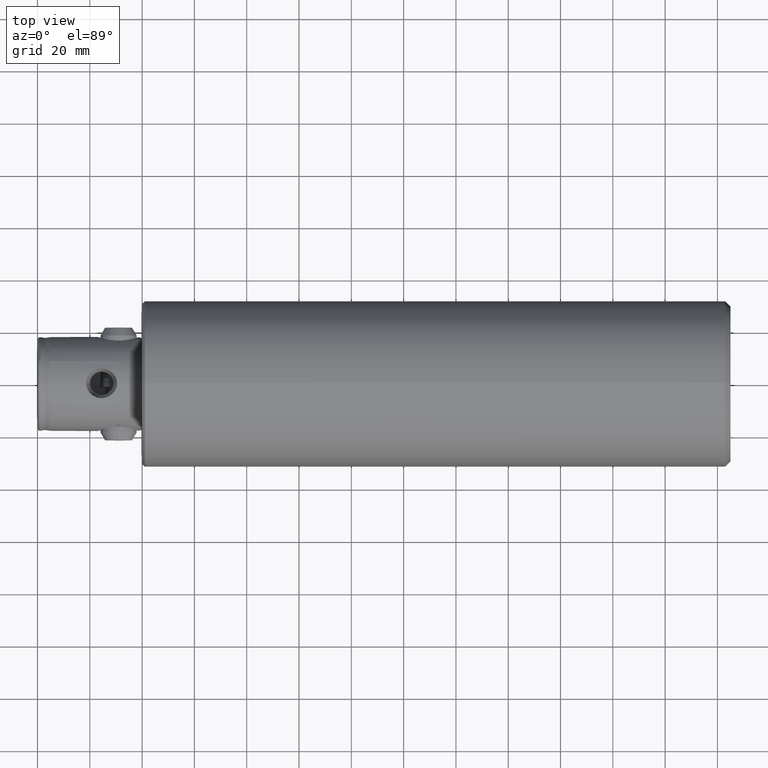
[diagram: clean part render]
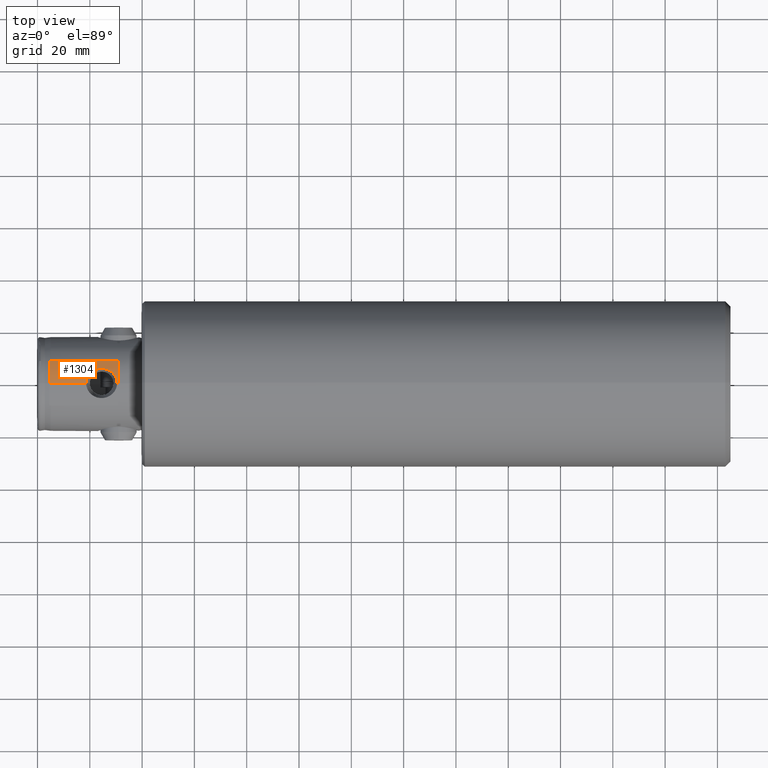
[diagram: same view with one face highlighted and labeled with its STEP entity id]
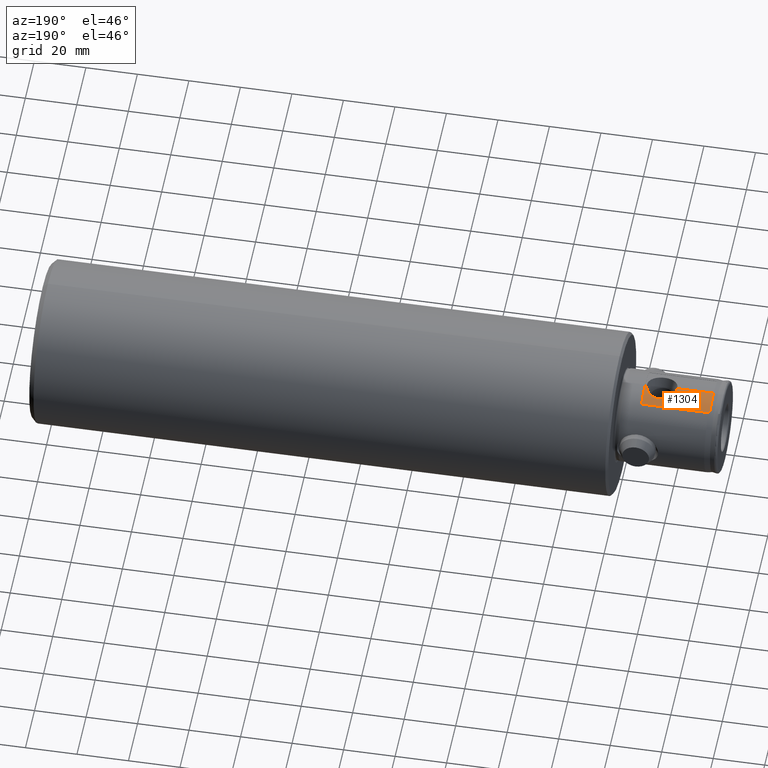
[diagram: same view with one face highlighted and labeled with its STEP entity id]
A machine part, top view. The second image highlights one B-rep face of the part: STEP entity #1304.
A second angle (auxiliary view) of the same face is appended — the face is thin or edge-on in the first view.
In plain terms, the highlighted cylindrical surface (partial cylindrical patch) has radius 18 mm, axis along (-1, 0, 0).
Its self-contained STEP definition (entity closure, byte-faithful):
#19 = B_SPLINE_CURVE_WITH_KNOTS ( 'NONE', 3,
 ( #918, #916, #913, #919, #920, #921, #922, #923, #924, #925 ),
 .UNSPECIFIED., .F., .F.,
 ( 4, 2, 2, 2, 4 ),
 ( 2.236915273377554400E-007, 0.004405091776158564400, 0.005506308797316371500, 0.006607525818474176800, 0.008809959860789792800 ),
 .UNSPECIFIED. ) ;
#22 = B_SPLINE_CURVE_WITH_KNOTS ( 'NONE', 3,
 ( #994, #989, #990, #995, #996, #997, #998, #999, #1000, #1001, #1002, #1003, #1004, #1005, #1006, #1007, #1008, #1009, #1010, #1011, #1012, #1013, #1014, #1015, #1016, #1017, #1018, #1019, #1020, #1021, #1022, #1023, #1024, #1025, #1026, #1027, #1028, #1029, #1030, #1031, #1032, #1033 ),
 .UNSPECIFIED., .F., .F.,
 ( 4, 2, 2, 2, 2, 2, 2, 2, 2, 2, 2, 2, 2, 2, 2, 2, 2, 2, 2, 2, 4 ),
 ( 0.01360910775429641900, 0.01474328752887493900, 0.01587746730345346000, 0.01701164707803198100, 0.01814582685261050000, 0.01928000662718901800, 0.01984709651447828100, 0.02041418640176753700, 0.02154836617634605500, 0.02268254595092457400, 0.02324963583821382900, 0.02381672572550308200, 0.02495090550008157900, 0.02608508527466007700, 0.02721926504923857400, 0.02778635493652782300, 0.02835344482381707200, 0.02948762459839557300, 0.03062180437297407400, 0.03118889426026332300, 0.03175598414755257500 ),
 .UNSPECIFIED. ) ;
#293 = DIRECTION ( 'NONE',  ( -1.000000000000000000, 0.0000000000000000000, 0.0000000000000000000 ) ) ;
#294 = DIRECTION ( 'NONE',  ( 0.0000000000000000000, 0.0000000000000000000, 1.000000000000000000 ) ) ;
#297 = CARTESIAN_POINT ( 'NONE',  ( 31.00000000000000000, 0.0000000000000000000, -0.06999999999999996500 ) ) ;
#913 = CARTESIAN_POINT ( 'NONE',  ( 4.526975339076886800, 5.815750174379757300, 17.02811837977963100 ) ) ;
#916 = CARTESIAN_POINT ( 'NONE',  ( 4.541645771106434600, 7.187216486560393100, 16.49991008679421300 ) ) ;
#918 = CARTESIAN_POINT ( 'NONE',  ( 4.561173011721211700, 8.500000000000001800, 15.79663165262242700 ) ) ;
#919 = CARTESIAN_POINT ( 'NONE',  ( 4.514512600342740700, 4.030500815527453500, 17.47681169941615000 ) ) ;
#920 = CARTESIAN_POINT ( 'NONE',  ( 4.512318024354617500, 3.669854151725033400, 17.55581995454566900 ) ) ;
#921 = CARTESIAN_POINT ( 'NONE',  ( 4.508536962439103000, 2.941221782085254400, 17.69194170110860800 ) ) ;
#922 = CARTESIAN_POINT ( 'NONE',  ( 4.506949049834921600, 2.572302290702973800, 17.74910654927889600 ) ) ;
#923 = CARTESIAN_POINT ( 'NONE',  ( 4.503167209855087400, 1.469061508139440900, 17.88525124977483900 ) ) ;
#924 = CARTESIAN_POINT ( 'NONE',  ( 4.501924119433152100, 0.7342156615914451300, 17.93000000000000000 ) ) ;
#925 = CARTESIAN_POINT ( 'NONE',  ( 4.501924119433152100, 1.318032018692837200E-015, 17.93000000000000000 ) ) ;
#989 = CARTESIAN_POINT ( 'NONE',  ( 30.42445529774621000, 0.3809652001136524800, 17.93000000000000700 ) ) ;
#990 = CARTESIAN_POINT ( 'NONE',  ( 30.38336581847062200, 0.7681734596086007300, 17.91746456608988000 ) ) ;
#994 = CARTESIAN_POINT ( 'NONE',  ( 30.42445529774620600, -1.071667539742744500E-023, 17.93000000000000000 ) ) ;
#995 = CARTESIAN_POINT ( 'NONE',  ( 30.22428742545745500, 1.512255011053177400, 17.87023569415771400 ) ) ;
#996 = CARTESIAN_POINT ( 'NONE',  ( 30.10692999351813300, 1.873383340865529200, 17.83572605408934200 ) ) ;
#997 = CARTESIAN_POINT ( 'NONE',  ( 29.79594064907516700, 2.573923875962815400, 17.74851583456586800 ) ) ;
#998 = CARTESIAN_POINT ( 'NONE',  ( 29.60733662265327800, 2.901956093779709100, 17.69727156016931600 ) ) ;
#999 = CARTESIAN_POINT ( 'NONE',  ( 29.16872895660654300, 3.515783486802860100, 17.58606282093919400 ) ) ;
#1000 = CARTESIAN_POINT ( 'NONE',  ( 28.91559999438211300, 3.804064267599762200, 17.52542859830050800 ) ) ;
#1001 = CARTESIAN_POINT ( 'NONE',  ( 28.36499703567021100, 4.319612037852444100, 17.40601111101617300 ) ) ;
#1002 = CARTESIAN_POINT ( 'NONE',  ( 28.06691972846662300, 4.548958210731684400, 17.34696330688903000 ) ) ;
#1003 = CARTESIAN_POINT ( 'NONE',  ( 27.58534548090496900, 4.851172622815272300, 17.26427333616189200 ) ) ;
#1004 = CARTESIAN_POINT ( 'NONE',  ( 27.41830335428071000, 4.945178645238853800, 17.23760156847704300 ) ) ;
#1005 = CARTESIAN_POINT ( 'NONE',  ( 27.07895362516774900, 5.115469253199727900, 17.18803691634838800 ) ) ;
#1006 = CARTESIAN_POINT ( 'NONE',  ( 26.90605426236586000, 5.192209219451712000, 17.16502539275114700 ) ) ;
#1007 = CARTESIAN_POINT ( 'NONE',  ( 26.37781099911529000, 5.397836957271664500, 17.10218400938147500 ) ) ;
#1008 = CARTESIAN_POINT ( 'NONE',  ( 26.01301121549560900, 5.502376496687897900, 17.06853502492067800 ) ) ;
#1009 = CARTESIAN_POINT ( 'NONE',  ( 25.25668822700170300, 5.643795072353519500, 17.02248686098703300 ) ) ;
#1010 = CARTESIAN_POINT ( 'NONE',  ( 24.87689642852934900, 5.678383750228683800, 17.01086525989592200 ) ) ;
#1011 = CARTESIAN_POINT ( 'NONE',  ( 24.30682891010763700, 5.678093498899985800, 17.01096174775135200 ) ) ;
#1012 = CARTESIAN_POINT ( 'NONE',  ( 24.11663054508899500, 5.669258924182950700, 17.01390624646067100 ) ) ;
#1013 = CARTESIAN_POINT ( 'NONE',  ( 23.73587562974411500, 5.633765542119971500, 17.02564374932128300 ) ) ;
#1014 = CARTESIAN_POINT ( 'NONE',  ( 23.54437903640693700, 5.606872356921136300, 17.03451315339182800 ) ) ;
#1015 = CARTESIAN_POINT ( 'NONE',  ( 22.98052156601741900, 5.500599572436073900, 17.06910603588053400 ) ) ;
#1016 = CARTESIAN_POINT ( 'NONE',  ( 22.61631401092382300, 5.396018564207124300, 17.10276199159195400 ) ) ;
#1017 = CARTESIAN_POINT ( 'NONE',  ( 21.91057067136104300, 5.120349963584339500, 17.18696343553972700 ) ) ;
#1018 = CARTESIAN_POINT ( 'NONE',  ( 21.56655573510353100, 4.947097282873361500, 17.23807999303060600 ) ) ;
#1019 = CARTESIAN_POINT ( 'NONE',  ( 20.92801361076500700, 4.545167376228783400, 17.34794643732219300 ) ) ;
#1020 = CARTESIAN_POINT ( 'NONE',  ( 20.63039370256532500, 4.315901487580737800, 17.40694282603676200 ) ) ;
#1021 = CARTESIAN_POINT ( 'NONE',  ( 20.21685277232093000, 3.927773242946562200, 17.49673650399407500 ) ) ;
#1022 = CARTESIAN_POINT ( 'NONE',  ( 20.08398971681412300, 3.790248747686351600, 17.52702132769097400 ) ) ;
#1023 = CARTESIAN_POINT ( 'NONE',  ( 19.83493036921722900, 3.505455948827530300, 17.58596000696021700 ) ) ;
#1024 = CARTESIAN_POINT ( 'NONE',  ( 19.71815507738248400, 3.357762001933571200, 17.61472809149315200 ) ) ;
#1025 = CARTESIAN_POINT ( 'NONE',  ( 19.39080773785514100, 2.898781056789243600, 17.69777312190536700 ) ) ;
#1026 = CARTESIAN_POINT ( 'NONE',  ( 19.20294744332403200, 2.571778301346444800, 17.74882137777874300 ) ) ;
#1027 = CARTESIAN_POINT ( 'NONE',  ( 18.89246308275029700, 1.871655050426903600, 17.83590255465142600 ) ) ;
#1028 = CARTESIAN_POINT ( 'NONE',  ( 18.77510293552835200, 1.509791208866784200, 17.87041579329418900 ) ) ;
#1029 = CARTESIAN_POINT ( 'NONE',  ( 18.65634118643579200, 0.9537062919278279600, 17.90567638202802700 ) ) ;
#1030 = CARTESIAN_POINT ( 'NONE',  ( 18.62626926727870100, 0.7658814693616647900, 17.91470760956920900 ) ) ;
#1031 = CARTESIAN_POINT ( 'NONE',  ( 18.58581151136006700, 0.3851183498645149300, 17.92688767769043400 ) ) ;
#1032 = CARTESIAN_POINT ( 'NONE',  ( 18.57554470225380100, 0.1914159347592796500, 17.92999999999999600 ) ) ;
#1033 = CARTESIAN_POINT ( 'NONE',  ( 18.57554470225370100, 7.387272118025272300E-015, 17.93000000000003200 ) ) ;
#1252 = CARTESIAN_POINT ( 'NONE',  ( 31.00000000000000000, 0.0000000000000000000, -0.06999999999999996500 ) ) ;
#1253 = DIRECTION ( 'NONE',  ( -1.000000000000000000, -0.0000000000000000000, -0.0000000000000000000 ) ) ;
#1254 = DIRECTION ( 'NONE',  ( 0.0000000000000000000, 0.0000000000000000000, -1.000000000000000000 ) ) ;
#1255 = CARTESIAN_POINT ( 'NONE',  ( 31.00000000000000000, 8.500000000000001800, 15.79663165262242700 ) ) ;
#1256 = DIRECTION ( 'NONE',  ( -1.000000000000000000, 0.0000000000000000000, 0.0000000000000000000 ) ) ;
#1304 = ADVANCED_FACE ( 'NONE', ( #3037 ), #3040, .T. ) ;
#1440 = CARTESIAN_POINT ( 'NONE',  ( 31.00000000000000000, 0.0000000000000000000, 17.93000000000000000 ) ) ;
#1442 = CARTESIAN_POINT ( 'NONE',  ( 18.57554470225370100, 7.387272118025272300E-015, 17.93000000000003200 ) ) ;
#1443 = CARTESIAN_POINT ( 'NONE',  ( 30.42445529774620600, -1.071667539742744500E-023, 17.93000000000000000 ) ) ;
#1445 = CARTESIAN_POINT ( 'NONE',  ( 4.501924119433152100, 1.318032018692837200E-015, 17.93000000000000000 ) ) ;
#1503 = CARTESIAN_POINT ( 'NONE',  ( 4.561173011721211700, 8.500000000000001800, 15.79663165262242700 ) ) ;
#1510 = CARTESIAN_POINT ( 'NONE',  ( 31.00000000000000000, 8.500000000000001800, 15.79663165262242700 ) ) ;
#1626 = CARTESIAN_POINT ( 'NONE',  ( 31.00000000000000000, 0.0000000000000000000, 17.93000000000000000 ) ) ;
#1628 = DIRECTION ( 'NONE',  ( -1.000000000000000000, 0.0000000000000000000, 0.0000000000000000000 ) ) ;
#1638 = CARTESIAN_POINT ( 'NONE',  ( 31.00000000000000000, 0.0000000000000000000, 17.93000000000000000 ) ) ;
#1639 = DIRECTION ( 'NONE',  ( -1.000000000000000000, 0.0000000000000000000, 0.0000000000000000000 ) ) ;
#1829 = ORIENTED_EDGE ( 'NONE', *, *, #2104, .F. ) ;
#1945 = ORIENTED_EDGE ( 'NONE', *, *, #2092, .T. ) ;
#1963 = ORIENTED_EDGE ( 'NONE', *, *, #2745, .F. ) ;
#2092 = EDGE_CURVE ( 'NONE', #2643, #2585, #19, .T. ) ;
#2104 = EDGE_CURVE ( 'NONE', #2583, #2582, #22, .T. ) ;
#2136 = EDGE_CURVE ( 'NONE', #2580, #2650, #2313, .T. ) ;
#2138 = EDGE_CURVE ( 'NONE', #2650, #2643, #2316, .T. ) ;
#2313 = CIRCLE ( 'NONE', #2911, 18.00000000000000400 ) ;
#2316 = LINE ( 'NONE', #1255, #2319 ) ;
#2319 = VECTOR ( 'NONE', #1256, 1000.000000000000000 ) ;
#2391 = LINE ( 'NONE', #1626, #2394 ) ;
#2394 = VECTOR ( 'NONE', #1628, 1000.000000000000000 ) ;
#2397 = LINE ( 'NONE', #1638, #2399 ) ;
#2399 = VECTOR ( 'NONE', #1639, 1000.000000000000000 ) ;
#2498 = ORIENTED_EDGE ( 'NONE', *, *, #2740, .F. ) ;
#2499 = ORIENTED_EDGE ( 'NONE', *, *, #2136, .T. ) ;
#2500 = ORIENTED_EDGE ( 'NONE', *, *, #2138, .T. ) ;
#2580 = VERTEX_POINT ( 'NONE', #1440 ) ;
#2582 = VERTEX_POINT ( 'NONE', #1442 ) ;
#2583 = VERTEX_POINT ( 'NONE', #1443 ) ;
#2585 = VERTEX_POINT ( 'NONE', #1445 ) ;
#2643 = VERTEX_POINT ( 'NONE', #1503 ) ;
#2650 = VERTEX_POINT ( 'NONE', #1510 ) ;
#2661 = EDGE_LOOP ( 'NONE', ( #2498, #2499, #2500, #1945, #1963, #1829 ) ) ;
#2740 = EDGE_CURVE ( 'NONE', #2580, #2583, #2391, .T. ) ;
#2745 = EDGE_CURVE ( 'NONE', #2582, #2585, #2397, .T. ) ;
#2806 = AXIS2_PLACEMENT_3D ( 'NONE', #297, #293, #294 ) ;
#2911 = AXIS2_PLACEMENT_3D ( 'NONE', #1252, #1253, #1254 ) ;
#3037 = FACE_OUTER_BOUND ( 'NONE', #2661, .T. ) ;
#3040 = CYLINDRICAL_SURFACE ( 'NONE', #2806, 18.00000000000000400 ) ;